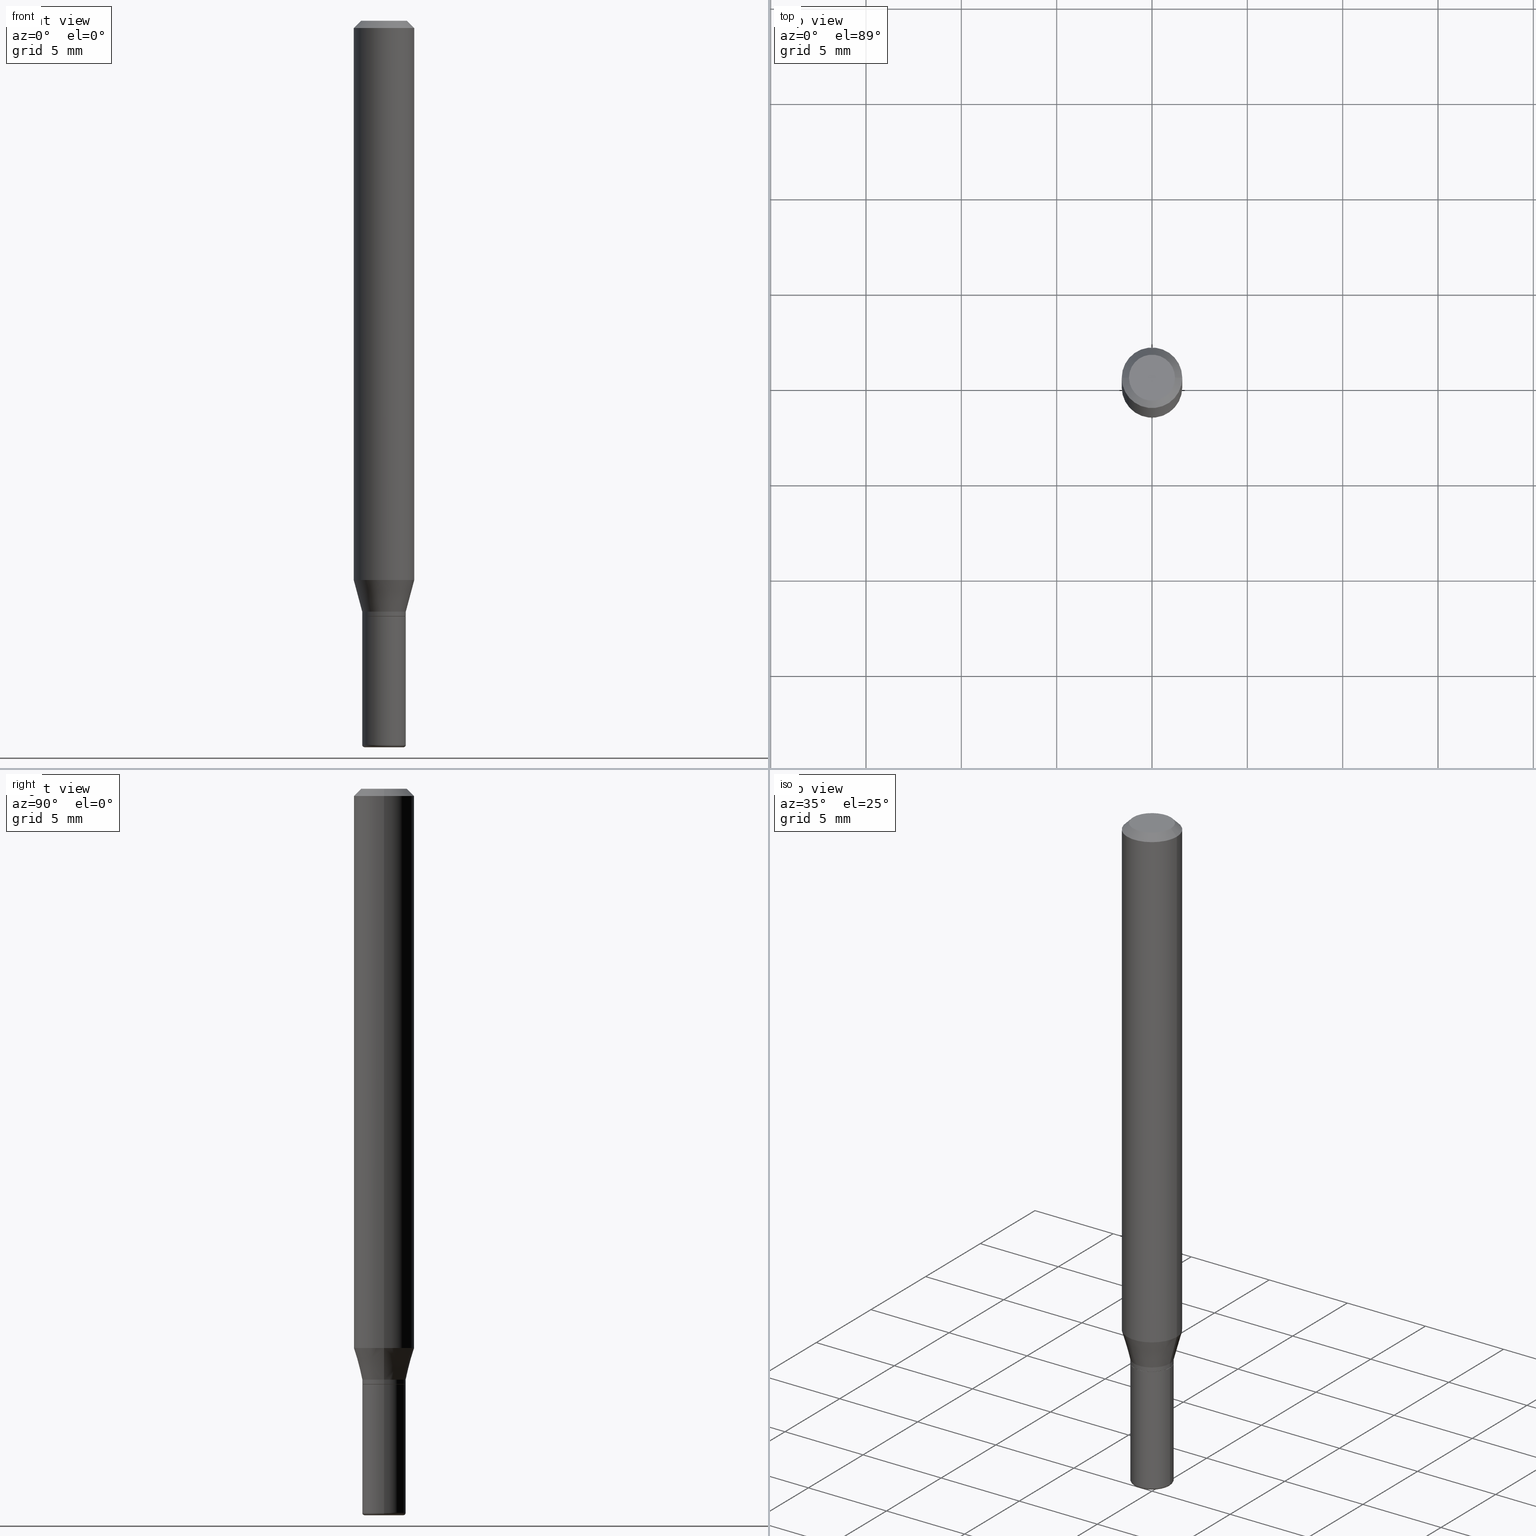
[diagram: canonical four-view strip — front | top / right | iso, engineering-drawing reading convention]
A machine part, canonical four-view strip (front | top / right | iso — engineering-drawing reading convention). The complete STEP part file that produces these views, byte-faithful:
ISO-10303-21;
HEADER;
FILE_DESCRIPTION (( 'STEP AP203' ),
    '1' );
FILE_NAME ('09201.STEP',
    '2024-02-29T23:19:57',
    ( '' ),
    ( '' ),
    'SwSTEP 2.0',
    'SolidWorks 2023',
    '' );
FILE_SCHEMA (( 'CONFIG_CONTROL_DESIGN' ));
ENDSEC;

DATA;
#1 = TOROIDAL_SURFACE ( 'NONE', #68, 0.04000000000000000083, 0.004999999999999903827 ) ;
#2 = FACE_OUTER_BOUND ( 'NONE', #125, .T. ) ;
#3 = AXIS2_PLACEMENT_3D ( 'NONE', #63, #109, #307 ) ;
#4 = ORIENTED_EDGE ( 'NONE', *, *, #65, .T. ) ;
#5 = PERSON_AND_ORGANIZATION_ROLE ( 'creator' ) ;
#6 = CARTESIAN_POINT ( 'NONE',  ( 2.983471943545866110E-29, -4.259607233388636735E-15, -1.219999999999999751 ) ) ;
#7 = SHAPE_DEFINITION_REPRESENTATION ( #67, #415 ) ;
#8 = DIRECTION ( 'NONE',  ( 0.7071067811866199593, -2.468850131083015945E-15, 0.7071067811864750752 ) ) ;
#9 = DIRECTION ( 'NONE',  ( -2.445468806185136597E-29, 3.491481338843145583E-15, 1.000000000000000000 ) ) ;
#10 = AXIS2_PLACEMENT_3D ( 'NONE', #330, #55, #300 ) ;
#11 = SECURITY_CLASSIFICATION ( '', '', #193 ) ;
#12 = ORIENTED_EDGE ( 'NONE', *, *, #149, .T. ) ;
#13 = APPROVAL_ROLE ( '' ) ;
#14 = CARTESIAN_POINT ( 'NONE',  ( 3.655975865246779683E-29, -5.219764601570503930E-15, -1.495000000000000329 ) ) ;
#15 = ORIENTED_EDGE ( 'NONE', *, *, #277, .F. ) ;
#16 = PRODUCT_DEFINITION ( 'UNKNOWN', '', #391, #376 ) ;
#17 = DIRECTION ( 'NONE',  ( 1.000000000000000000, -6.982962677686273021E-15, 0.000000000000000000 ) ) ;
#18 = ORIENTED_EDGE ( 'NONE', *, *, #237, .F. ) ;
#19 = DIRECTION ( 'NONE',  ( 2.445468806185136597E-29, -3.491481338843145583E-15, -1.000000000000000000 ) ) ;
#20 = ADVANCED_FACE ( 'NONE', ( #394 ), #33, .T. ) ;
#21 = CIRCLE ( 'NONE', #458, 0.04499999999999992895 ) ;
#22 = ORIENTED_EDGE ( 'NONE', *, *, #393, .T. ) ;
#23 = TOROIDAL_SURFACE ( 'NONE', #182, 0.04000000000000000083, 0.004999999999999903827 ) ;
#24 = AXIS2_PLACEMENT_3D ( 'NONE', #31, #465, #225 ) ;
#25 = DIRECTION ( 'NONE',  ( -1.000000000000000000, 6.982962677686265922E-15, -4.876176775795935793E-29 ) ) ;
#26 = LINE ( 'NONE', #470, #53 ) ;
#27 = DIRECTION ( 'NONE',  ( -2.438088387897960049E-29, 3.491481338843145188E-15, 1.000000000000000000 ) ) ;
#28 = VECTOR ( 'NONE', #320, 39.37007874015748854 ) ;
#29 = DIRECTION ( 'NONE',  ( 1.000000000000000000, -6.982962677686266711E-15, 0.000000000000000000 ) ) ;
#30 = ORIENTED_EDGE ( 'NONE', *, *, #360, .T. ) ;
#31 = CARTESIAN_POINT ( 'NONE',  ( 3.007926631607718216E-29, -4.294522046777069173E-15, -1.230000000000000204 ) ) ;
#32 = EDGE_CURVE ( 'NONE', #437, #379, #420, .T. ) ;
#33 = CYLINDRICAL_SURFACE ( 'NONE', #244, 0.04499999999999993588 ) ;
#34 = DIRECTION ( 'NONE',  ( -2.445468806185136597E-29, 3.491481338843145583E-15, 1.000000000000000000 ) ) ;
#35 = ORIENTED_EDGE ( 'NONE', *, *, #87, .F. ) ;
#36 = AXIS2_PLACEMENT_3D ( 'NONE', #58, #131, #455 ) ;
#37 = PERSON_AND_ORGANIZATION_ROLE ( 'classification_officer' ) ;
#38 = APPROVAL_PERSON_ORGANIZATION ( #446, #54, #238 ) ;
#39 = DIRECTION ( 'NONE',  ( -2.445468806185136877E-29, 3.491481338843145188E-15, 1.000000000000000000 ) ) ;
#40 = DATE_AND_TIME ( #400, #459 ) ;
#41 = DIRECTION ( 'NONE',  ( -2.445468806185136597E-29, 3.491481338843145583E-15, 1.000000000000000000 ) ) ;
#42 = DATE_AND_TIME ( #189, #104 ) ;
#43 = DIRECTION ( 'NONE',  ( 1.000000000000000000, -6.982962677686269077E-15, 0.000000000000000000 ) ) ;
#44 = DIRECTION ( 'NONE',  ( -2.445468806185136597E-29, 3.491481338843145583E-15, 1.000000000000000000 ) ) ;
#45 = VECTOR ( 'NONE', #134, 39.37007874015748143 ) ;
#46 = ORIENTED_EDGE ( 'NONE', *, *, #485, .F. ) ;
#47 = DIRECTION ( 'NONE',  ( 1.000000000000000000, -6.982962677686265922E-15, 0.000000000000000000 ) ) ;
#48 = CC_DESIGN_PERSON_AND_ORGANIZATION_ASSIGNMENT ( #443, #5, ( #16 ) ) ;
#49 = CARTESIAN_POINT ( 'NONE',  ( 2.983471943545866110E-29, -4.259607233388636735E-15, -1.219999999999999751 ) ) ;
#50 = EDGE_LOOP ( 'NONE', ( #177, #395, #35, #284 ) ) ;
#51 = APPROVAL_DATE_TIME ( #136, #162 ) ;
#52 = CARTESIAN_POINT ( 'NONE',  ( 0.000000000000000000, 0.000000000000000000, 0.000000000000000000 ) ) ;
#53 = VECTOR ( 'NONE', #344, 39.37007874015748143 ) ;
#54 = APPROVAL ( #409, 'UNSPECIFIED' ) ;
#55 = DIRECTION ( 'NONE',  ( -2.445468806185136597E-29, 3.491481338843145583E-15, 1.000000000000000000 ) ) ;
#56 = VERTEX_POINT ( 'NONE', #480 ) ;
#57 = ADVANCED_FACE ( 'NONE', ( #2 ), #23, .T. ) ;
#58 = CARTESIAN_POINT ( 'NONE',  ( -6.680649051745406845E-45, 9.538196290434862081E-31, 2.731847993664263218E-16 ) ) ;
#59 = VERTEX_POINT ( 'NONE', #239 ) ;
#60 = CARTESIAN_POINT ( 'NONE',  ( 3.668203209277632395E-31, -5.237222008264614861E-17, -0.01499999999999970281 ) ) ;
#61 = CIRCLE ( 'NONE', #305, 0.04499999999999992895 ) ;
#62 = ORIENTED_EDGE ( 'NONE', *, *, #153, .F. ) ;
#63 = CARTESIAN_POINT ( 'NONE',  ( 3.668203209277704335E-29, -5.237222008264717388E-15, -1.499999999999999778 ) ) ;
#64 = FACE_OUTER_BOUND ( 'NONE', #313, .T. ) ;
#65 = EDGE_CURVE ( 'NONE', #260, #232, #487, .T. ) ;
#66 = CYLINDRICAL_SURFACE ( 'NONE', #279, 0.04499999999999994976 ) ;
#67 = PRODUCT_DEFINITION_SHAPE ( 'NONE', 'NONE',  #16 ) ;
#68 = AXIS2_PLACEMENT_3D ( 'NONE', #447, #241, #117 ) ;
#69 = EDGE_CURVE ( 'NONE', #379, #206, #390, .T. ) ;
#70 = LINE ( 'NONE', #185, #306 ) ;
#71 = EDGE_LOOP ( 'NONE', ( #170, #190, #100, #449 ) ) ;
#72 = DIRECTION ( 'NONE',  ( 2.438088387897960049E-29, -3.491481338843145188E-15, -1.000000000000000000 ) ) ;
#73 = EDGE_CURVE ( 'NONE', #172, #255, #199, .T. ) ;
#74 = ORIENTED_EDGE ( 'NONE', *, *, #69, .F. ) ;
#75 = CALENDAR_DATE ( 2024, 29, 2 ) ;
#76 = LINE ( 'NONE', #398, #372 ) ;
#77 = DATE_AND_TIME ( #115, #467 ) ;
#78 = AXIS2_PLACEMENT_3D ( 'NONE', #231, #102, #265 ) ;
#79 = DIRECTION ( 'NONE',  ( -2.445468806185136597E-29, 3.491481338843145583E-15, 1.000000000000000000 ) ) ;
#80 =( NAMED_UNIT ( * ) PLANE_ANGLE_UNIT ( ) SI_UNIT ( $, .RADIAN. ) );
#81 = DIRECTION ( 'NONE',  ( -2.445468806185136597E-29, 3.491481338843145583E-15, 1.000000000000000000 ) ) ;
#82 = VERTEX_POINT ( 'NONE', #192 ) ;
#83 = EDGE_CURVE ( 'NONE', #186, #56, #243, .T. ) ;
#84 = PERSON_AND_ORGANIZATION ( #407, #383 ) ;
#85 = CARTESIAN_POINT ( 'NONE',  ( 3.007926631607718216E-29, -4.294522046777069173E-15, -1.230000000000000204 ) ) ;
#86 = ORIENTED_EDGE ( 'NONE', *, *, #106, .T. ) ;
#87 = EDGE_CURVE ( 'NONE', #260, #135, #61, .T. ) ;
#88 = MECHANICAL_CONTEXT ( 'NONE', #184, 'mechanical' ) ;
#89 = AXIS2_PLACEMENT_3D ( 'NONE', #221, #348, #469 ) ;
#90 = CARTESIAN_POINT ( 'NONE',  ( 3.007926631607718216E-29, -4.294522046777069173E-15, -1.230000000000000204 ) ) ;
#91 = VECTOR ( 'NONE', #107, 39.37007874015748143 ) ;
#92 = DIRECTION ( 'NONE',  ( -2.445468806185136597E-29, 3.491481338843145583E-15, 1.000000000000000000 ) ) ;
#93 = DIRECTION ( 'NONE',  ( -1.000000000000000000, 6.982962677686266711E-15, 0.000000000000000000 ) ) ;
#94 = DIRECTION ( 'NONE',  ( -6.982962677686266711E-15, -1.000000000000000000, 3.491481338843145583E-15 ) ) ;
#95 = ORIENTED_EDGE ( 'NONE', *, *, #73, .T. ) ;
#96 = CARTESIAN_POINT ( 'NONE',  ( -0.04449999999999994238, -3.978330529363825493E-15, -1.230000000000000204 ) ) ;
#97 = EDGE_LOOP ( 'NONE', ( #114, #301, #423, #220 ) ) ;
#98 = ADVANCED_FACE ( 'NONE', ( #319 ), #1, .T. ) ;
#99 = PLANE ( 'NONE',  #176 ) ;
#100 = ORIENTED_EDGE ( 'NONE', *, *, #153, .T. ) ;
#101 = PRODUCT ( '09201', '09201', '', ( #88 ) ) ;
#102 = DIRECTION ( 'NONE',  ( -2.445468806185136597E-29, 3.491481338843145583E-15, 1.000000000000000000 ) ) ;
#103 = VECTOR ( 'NONE', #8, 39.37007874015748143 ) ;
#104 = LOCAL_TIME ( 18, 19, 57.00000000000000000, #235 ) ;
#105 = CARTESIAN_POINT ( 'NONE',  ( 0.06250000000000000000, -4.811533449433669144E-16, -0.01499999999999970281 ) ) ;
#106 = EDGE_CURVE ( 'NONE', #59, #437, #217, .T. ) ;
#107 = DIRECTION ( 'NONE',  ( -2.445468806185136877E-29, 3.491481338843145188E-15, 1.000000000000000000 ) ) ;
#108 = CC_DESIGN_DATE_AND_TIME_ASSIGNMENT ( #40, #358, ( #11 ) ) ;
#109 = DIRECTION ( 'NONE',  ( -2.445468806185136597E-29, 3.491481338843145583E-15, 1.000000000000000000 ) ) ;
#110 = ORIENTED_EDGE ( 'NONE', *, *, #219, .T. ) ;
#111 = CONICAL_SURFACE ( 'NONE', #512, 0.04449999999999994238, 0.7853981633975507526 ) ;
#112 = VECTOR ( 'NONE', #431, 39.37007874015748854 ) ;
#113 = FACE_OUTER_BOUND ( 'NONE', #97, .T. ) ;
#114 = ORIENTED_EDGE ( 'NONE', *, *, #128, .F. ) ;
#115 = CALENDAR_DATE ( 2024, 29, 2 ) ;
#116 = CARTESIAN_POINT ( 'NONE',  ( 3.655975865246779122E-29, -5.219764601570503141E-15, -1.495000000000000107 ) ) ;
#117 = DIRECTION ( 'NONE',  ( 1.000000000000000000, -6.982962677686261189E-15, 4.883557194083110098E-29 ) ) ;
#118 = PERSON_AND_ORGANIZATION_ROLE ( 'design_owner' ) ;
#119 = AXIS2_PLACEMENT_3D ( 'NONE', #142, #303, #261 ) ;
#120 = DIRECTION ( 'NONE',  ( 1.000000000000000000, -6.982962677686267499E-15, 4.876176775795935232E-29 ) ) ;
#121 = EDGE_CURVE ( 'NONE', #135, #260, #21, .T. ) ;
#122 = CARTESIAN_POINT ( 'NONE',  ( 2.823756201468229950E-29, -4.031575482759414101E-15, -1.154689110867544111 ) ) ;
#123 = LINE ( 'NONE', #479, #103 ) ;
#124 = ADVANCED_FACE ( 'NONE', ( #450 ), #312, .T. ) ;
#125 = EDGE_LOOP ( 'NONE', ( #86, #230, #212, #15 ) ) ;
#126 = LENGTH_MEASURE_WITH_UNIT ( LENGTH_MEASURE( 0.02539999999999999897 ), #159 );
#127 = CARTESIAN_POINT ( 'NONE',  ( 3.668203209277704335E-29, -5.237222008264717388E-15, -1.499999999999999778 ) ) ;
#128 = EDGE_CURVE ( 'NONE', #82, #135, #477, .T. ) ;
#129 = CIRCLE ( 'NONE', #489, 0.04499999999999999833 ) ;
#130 = AXIS2_PLACEMENT_3D ( 'NONE', #60, #488, #370 ) ;
#131 = DIRECTION ( 'NONE',  ( -2.445468806185136597E-29, 3.491481338843145583E-15, 1.000000000000000000 ) ) ;
#132 = CARTESIAN_POINT ( 'NONE',  ( 3.007926631607718216E-29, -4.294522046777069173E-15, -1.230000000000000204 ) ) ;
#133 = ORIENTED_EDGE ( 'NONE', *, *, #381, .F. ) ;
#134 = DIRECTION ( 'NONE',  ( -2.445468806185136877E-29, 3.491481338843145188E-15, 1.000000000000000000 ) ) ;
#135 = VERTEX_POINT ( 'NONE', #245 ) ;
#136 = DATE_AND_TIME ( #495, #399 ) ;
#137 = CARTESIAN_POINT ( 'NONE',  ( -0.04499999999999994976, 3.197442310920447267E-16, -2.213520790614704757E-30 ) ) ;
#138 = AXIS2_PLACEMENT_3D ( 'NONE', #223, #27, #434 ) ;
#139 = ORIENTED_EDGE ( 'NONE', *, *, #472, .F. ) ;
#140 = FACE_OUTER_BOUND ( 'NONE', #141, .T. ) ;
#141 = EDGE_LOOP ( 'NONE', ( #240, #501, #464, #412 ) ) ;
#142 = CARTESIAN_POINT ( 'NONE',  ( 3.006703897204625975E-29, -4.292776306107648458E-15, -1.229500000000000259 ) ) ;
#143 = CARTESIAN_POINT ( 'NONE',  ( -0.04499999999999990119, -4.437399093081741973E-15, -1.495000000000000329 ) ) ;
#144 = AXIS2_PLACEMENT_3D ( 'NONE', #468, #503, #29 ) ;
#145 = DIRECTION ( 'NONE',  ( 0.7071067811865479058, -7.319954787623257623E-15, -0.7071067811865471286 ) ) ;
#146 = ADVANCED_FACE ( 'NONE', ( #161 ), #111, .T. ) ;
#147 = PLANE ( 'NONE',  #218 ) ;
#148 = ORIENTED_EDGE ( 'NONE', *, *, #456, .F. ) ;
#149 = EDGE_CURVE ( 'NONE', #354, #298, #123, .T. ) ;
#150 = CARTESIAN_POINT ( 'NONE',  ( 2.983471943545866110E-29, -4.259607233388636735E-15, -1.219999999999999751 ) ) ;
#151 = ORIENTED_EDGE ( 'NONE', *, *, #87, .T. ) ;
#152 = CIRCLE ( 'NONE', #10, 0.06250000000000000000 ) ;
#153 = EDGE_CURVE ( 'NONE', #385, #56, #318, .T. ) ;
#154 = AXIS2_PLACEMENT_3D ( 'NONE', #439, #430, #229 ) ;
#155 = EDGE_LOOP ( 'NONE', ( #151, #309, #367, #440 ) ) ;
#156 = PERSON_AND_ORGANIZATION ( #407, #383 ) ;
#157 = CARTESIAN_POINT ( 'NONE',  ( 0.04499999999999990119, -5.533997922066385616E-15, -1.495000000000000329 ) ) ;
#158 = AXIS2_PLACEMENT_3D ( 'NONE', #448, #365, #204 ) ;
#159 =( LENGTH_UNIT ( ) NAMED_UNIT ( * ) SI_UNIT ( $, .METRE. ) );
#160 = AXIS2_PLACEMENT_3D ( 'NONE', #317, #282, #352 ) ;
#161 = FACE_OUTER_BOUND ( 'NONE', #165, .T. ) ;
#162 = APPROVAL ( #299, 'UNSPECIFIED' ) ;
#163 = COORDINATED_UNIVERSAL_TIME_OFFSET ( 5, 0, .BEHIND. ) ;
#164 = DIRECTION ( 'NONE',  ( 1.000000000000000000, -6.982962677686257244E-15, 0.000000000000000000 ) ) ;
#165 = EDGE_LOOP ( 'NONE', ( #371, #246, #188, #349 ) ) ;
#166 = DIRECTION ( 'NONE',  ( -2.445468806185136597E-29, 3.491481338843145583E-15, 1.000000000000000000 ) ) ;
#167 = CIRCLE ( 'NONE', #490, 0.004999999999999903827 ) ;
#168 = CIRCLE ( 'NONE', #89, 0.04449999999999994238 ) ;
#169 = DIRECTION ( 'NONE',  ( 1.000000000000000000, -6.982962677686261977E-15, 0.000000000000000000 ) ) ;
#170 = ORIENTED_EDGE ( 'NONE', *, *, #481, .F. ) ;
#171 = LINE ( 'NONE', #493, #45 ) ;
#172 = VERTEX_POINT ( 'NONE', #442 ) ;
#173 = CARTESIAN_POINT ( 'NONE',  ( 0.04449999999999994238, -4.605263885934107852E-15, -1.230000000000000204 ) ) ;
#174 = EDGE_LOOP ( 'NONE', ( #133, #110, #326, #417 ) ) ;
#175 = CARTESIAN_POINT ( 'NONE',  ( 3.006703897204625975E-29, -4.292776306107648458E-15, -1.229500000000000259 ) ) ;
#176 = AXIS2_PLACEMENT_3D ( 'NONE', #418, #375, #289 ) ;
#177 = ORIENTED_EDGE ( 'NONE', *, *, #222, .T. ) ;
#178 = DIRECTION ( 'NONE',  ( 1.000000000000000000, -6.982962677686266711E-15, 4.876176775795934672E-29 ) ) ;
#179 = DIRECTION ( 'NONE',  ( -2.445468806185136877E-29, 3.491481338843145188E-15, 1.000000000000000000 ) ) ;
#180 = EDGE_CURVE ( 'NONE', #232, #186, #76, .T. ) ;
#181 = DIRECTION ( 'NONE',  ( 1.000000000000000000, -6.982962677686257244E-15, 0.000000000000000000 ) ) ;
#182 = AXIS2_PLACEMENT_3D ( 'NONE', #116, #404, #202 ) ;
#183 = LOCAL_TIME ( 18, 19, 57.00000000000000000, #274 ) ;
#184 = APPLICATION_CONTEXT ( 'configuration controlled 3d designs of mechanical parts and assemblies' ) ;
#185 = CARTESIAN_POINT ( 'NONE',  ( -0.06250000000000000000, 4.440892098500626162E-16, -3.074334431409316114E-30 ) ) ;
#186 = VERTEX_POINT ( 'NONE', #357 ) ;
#187 = FACE_OUTER_BOUND ( 'NONE', #294, .T. ) ;
#188 = ORIENTED_EDGE ( 'NONE', *, *, #222, .F. ) ;
#189 = CALENDAR_DATE ( 2024, 29, 2 ) ;
#190 = ORIENTED_EDGE ( 'NONE', *, *, #250, .F. ) ;
#191 = COORDINATED_UNIVERSAL_TIME_OFFSET ( 5, 0, .BEHIND. ) ;
#192 = CARTESIAN_POINT ( 'NONE',  ( -0.04499999999999994976, -3.973032075015603880E-15, -1.229500000000000259 ) ) ;
#193 = SECURITY_CLASSIFICATION_LEVEL ( 'unclassified' ) ;
#194 = DIRECTION ( 'NONE',  ( 1.000000000000000000, -6.982962677686257244E-15, 0.000000000000000000 ) ) ;
#195 = CC_DESIGN_PERSON_AND_ORGANIZATION_ASSIGNMENT ( #441, #397, ( #391 ) ) ;
#196 = DIRECTION ( 'NONE',  ( 1.000000000000000000, -6.982962677686262766E-15, 0.000000000000000000 ) ) ;
#197 = DIRECTION ( 'NONE',  ( -2.445468806185136597E-29, 3.491481338843145583E-15, 1.000000000000000000 ) ) ;
#198 = VERTEX_POINT ( 'NONE', #401 ) ;
#199 = CIRCLE ( 'NONE', #234, 0.04499999999999999833 ) ;
#200 = DATE_AND_TIME ( #75, #183 ) ;
#201 = AXIS2_PLACEMENT_3D ( 'NONE', #392, #350, #308 ) ;
#202 = DIRECTION ( 'NONE',  ( 1.000000000000000000, -6.982962677686261189E-15, 4.883557194083110098E-29 ) ) ;
#203 = ORIENTED_EDGE ( 'NONE', *, *, #481, .T. ) ;
#204 = DIRECTION ( 'NONE',  ( 1.000000000000000000, -6.982962677686261977E-15, 0.000000000000000000 ) ) ;
#205 = CYLINDRICAL_SURFACE ( 'NONE', #428, 0.06250000000000000000 ) ;
#206 = VERTEX_POINT ( 'NONE', #157 ) ;
#207 = CONICAL_SURFACE ( 'NONE', #505, 0.06250000000000000000, 0.7853981633974488341 ) ;
#208 = CC_DESIGN_SECURITY_CLASSIFICATION ( #11, ( #391 ) ) ;
#209 = CARTESIAN_POINT ( 'NONE',  ( 0.04499999999999992895, -4.573840553884517633E-15, -1.219999999999999751 ) ) ;
#210 = ORIENTED_EDGE ( 'NONE', *, *, #393, .F. ) ;
#211 = DIRECTION ( 'NONE',  ( 1.000000000000000000, -6.982962677686257244E-15, 0.000000000000000000 ) ) ;
#212 = ORIENTED_EDGE ( 'NONE', *, *, #337, .F. ) ;
#213 = ADVANCED_FACE ( 'NONE', ( #254 ), #207, .T. ) ;
#214 = DIRECTION ( 'NONE',  ( -2.445468806185136597E-29, 3.491481338843145583E-15, 1.000000000000000000 ) ) ;
#215 = ORIENTED_EDGE ( 'NONE', *, *, #494, .F. ) ;
#216 = DIRECTION ( 'NONE',  ( -2.445468806185136597E-29, 3.491481338843145583E-15, 1.000000000000000000 ) ) ;
#217 = CIRCLE ( 'NONE', #226, 0.04000000000000000083 ) ;
#218 = AXIS2_PLACEMENT_3D ( 'NONE', #343, #72, #25 ) ;
#219 = EDGE_CURVE ( 'NONE', #497, #232, #152, .T. ) ;
#220 = ORIENTED_EDGE ( 'NONE', *, *, #121, .F. ) ;
#221 = CARTESIAN_POINT ( 'NONE',  ( 3.007926631607718216E-29, -4.294522046777069173E-15, -1.230000000000000204 ) ) ;
#222 = EDGE_CURVE ( 'NONE', #298, #82, #451, .T. ) ;
#223 = CARTESIAN_POINT ( 'NONE',  ( 3.582686580359765478E-29, -5.359686688179452536E-15, -1.499999999999999778 ) ) ;
#224 = MANIFOLD_SOLID_BREP ( 'Body-Move/Copy2[1]', #278 ) ;
#225 = DIRECTION ( 'NONE',  ( 1.000000000000000000, -6.982962677686265922E-15, 4.876176775795935793E-29 ) ) ;
#226 = AXIS2_PLACEMENT_3D ( 'NONE', #127, #197, #236 ) ;
#227 = CIRCLE ( 'NONE', #3, 0.04000000000000000083 ) ;
#228 = ADVANCED_FACE ( 'NONE', ( #491 ), #205, .T. ) ;
#229 = DIRECTION ( 'NONE',  ( 1.000000000000000000, -6.982962677686266711E-15, 4.852736867747365086E-29 ) ) ;
#230 = ORIENTED_EDGE ( 'NONE', *, *, #32, .T. ) ;
#231 = CARTESIAN_POINT ( 'NONE',  ( 3.007926631607718216E-29, -4.294522046777069173E-15, -1.230000000000000204 ) ) ;
#232 = VERTEX_POINT ( 'NONE', #297 ) ;
#233 = CARTESIAN_POINT ( 'NONE',  ( 3.668203209277632395E-31, -5.237222008264614861E-17, -0.01499999999999970281 ) ) ;
#234 = AXIS2_PLACEMENT_3D ( 'NONE', #85, #79, #43 ) ;
#235 = COORDINATED_UNIVERSAL_TIME_OFFSET ( 5, 0, .BEHIND. ) ;
#236 = DIRECTION ( 'NONE',  ( 1.000000000000000000, -6.982962677686259611E-15, 0.000000000000000000 ) ) ;
#237 = EDGE_CURVE ( 'NONE', #255, #172, #129, .T. ) ;
#238 = APPROVAL_ROLE ( '' ) ;
#239 = CARTESIAN_POINT ( 'NONE',  ( 0.04000000000000000083, -5.516540515372168214E-15, -1.499999999999999778 ) ) ;
#240 = ORIENTED_EDGE ( 'NONE', *, *, #517, .T. ) ;
#241 = DIRECTION ( 'NONE',  ( -2.445468806185136597E-29, 3.491481338843145583E-15, 1.000000000000000000 ) ) ;
#242 = VERTEX_POINT ( 'NONE', #249 ) ;
#243 = CIRCLE ( 'NONE', #498, 0.06250000000000000000 ) ;
#244 = AXIS2_PLACEMENT_3D ( 'NONE', #511, #44, #120 ) ;
#245 = CARTESIAN_POINT ( 'NONE',  ( -0.04499999999999992895, -3.763674637602971820E-15, -1.219999999999999751 ) ) ;
#246 = ORIENTED_EDGE ( 'NONE', *, *, #256, .T. ) ;
#247 = CARTESIAN_POINT ( 'NONE',  ( 0.000000000000000000, 0.000000000000000000, 0.000000000000000000 ) ) ;
#248 = EDGE_LOOP ( 'NONE', ( #514, #406, #12, #139 ) ) ;
#249 = CARTESIAN_POINT ( 'NONE',  ( 0.04750000000000000749, -4.035134999187568762E-16, 2.731847993664288856E-16 ) ) ;
#250 = EDGE_CURVE ( 'NONE', #385, #242, #262, .T. ) ;
#251 = ORIENTED_EDGE ( 'NONE', *, *, #106, .F. ) ;
#252 = COORDINATED_UNIVERSAL_TIME_OFFSET ( 5, 0, .BEHIND. ) ;
#253 = CIRCLE ( 'NONE', #119, 0.04499999999999994976 ) ;
#254 = FACE_OUTER_BOUND ( 'NONE', #71, .T. ) ;
#255 = VERTEX_POINT ( 'NONE', #291 ) ;
#256 = EDGE_CURVE ( 'NONE', #198, #82, #453, .T. ) ;
#257 = DIRECTION ( 'NONE',  ( 1.000000000000000000, -6.982962677686266711E-15, 4.876176775795935793E-29 ) ) ;
#258 = ORIENTED_EDGE ( 'NONE', *, *, #360, .F. ) ;
#259 = CYLINDRICAL_SURFACE ( 'NONE', #506, 0.04499999999999994976 ) ;
#260 = VERTEX_POINT ( 'NONE', #209 ) ;
#261 = DIRECTION ( 'NONE',  ( 1.000000000000000000, -6.982962677686276177E-15, 0.000000000000000000 ) ) ;
#262 = CIRCLE ( 'NONE', #36, 0.04750000000000000749 ) ;
#263 = ADVANCED_FACE ( 'NONE', ( #140 ), #380, .T. ) ;
#264 = AXIS2_PLACEMENT_3D ( 'NONE', #150, #266, #181 ) ;
#265 = DIRECTION ( 'NONE',  ( 1.000000000000000000, -6.982962677686265922E-15, 0.000000000000000000 ) ) ;
#266 = DIRECTION ( 'NONE',  ( -2.445468806185136597E-29, 3.491481338843145583E-15, 1.000000000000000000 ) ) ;
#267 = CARTESIAN_POINT ( 'NONE',  ( -0.04000000000000000083, -4.926512642219568995E-15, -1.499999999999999778 ) ) ;
#268 = EDGE_LOOP ( 'NONE', ( #273, #369, #4, #334 ) ) ;
#269 = AXIS2_PLACEMENT_3D ( 'NONE', #90, #81, #361 ) ;
#270 = AXIS2_PLACEMENT_3D ( 'NONE', #49, #214, #211 ) ;
#271 = CC_DESIGN_PERSON_AND_ORGANIZATION_ASSIGNMENT ( #513, #476, ( #391 ) ) ;
#272 = CARTESIAN_POINT ( 'NONE',  ( -0.04499999999999992895, -3.939863002296592156E-15, -1.219999999999999751 ) ) ;
#273 = ORIENTED_EDGE ( 'NONE', *, *, #432, .F. ) ;
#274 = COORDINATED_UNIVERSAL_TIME_OFFSET ( 5, 0, .BEHIND. ) ;
#275 = CARTESIAN_POINT ( 'NONE',  ( -0.04499999999999993588, 3.197442310920446281E-16, -2.213520790614704407E-30 ) ) ;
#276 = DIRECTION ( 'NONE',  ( -0.7071067811865479058, 2.468850131082261005E-15, -0.7071067811865471286 ) ) ;
#277 = EDGE_CURVE ( 'NONE', #59, #206, #167, .T. ) ;
#278 = CLOSED_SHELL ( 'NONE', ( #57, #316, #310, #452, #98, #502 ) ) ;
#279 = AXIS2_PLACEMENT_3D ( 'NONE', #346, #389, #178 ) ;
#280 = APPLICATION_PROTOCOL_DEFINITION ( 'international standard', 'config_control_design', 1994, #322 ) ;
#281 = DIRECTION ( 'NONE',  ( -2.445468806185136597E-29, 3.491481338843145583E-15, 1.000000000000000000 ) ) ;
#282 = DIRECTION ( 'NONE',  ( 0.000000000000000000, 0.000000000000000000, 1.000000000000000000 ) ) ;
#283 = CARTESIAN_POINT ( 'NONE',  ( 0.04499999999999992895, -4.573840553884517633E-15, -1.219999999999999751 ) ) ;
#284 = ORIENTED_EDGE ( 'NONE', *, *, #345, .F. ) ;
#285 = APPROVAL_DATE_TIME ( #42, #388 ) ;
#286 = DIRECTION ( 'NONE',  ( -2.445468806185136597E-29, 3.491481338843145583E-15, 1.000000000000000000 ) ) ;
#287 = EDGE_LOOP ( 'NONE', ( #377, #30, #331, #148 ) ) ;
#288 = CIRCLE ( 'NONE', #78, 0.04449999999999994238 ) ;
#289 = DIRECTION ( 'NONE',  ( -1.000000000000000000, 6.982962677686265922E-15, -4.876176775795935793E-29 ) ) ;
#290 = DIRECTION ( 'NONE',  ( -2.445468806185136597E-29, 3.491481338843145583E-15, 1.000000000000000000 ) ) ;
#291 = CARTESIAN_POINT ( 'NONE',  ( -0.04499999999999999833, -4.437399093081741973E-15, -1.230000000000000204 ) ) ;
#292 = UNCERTAINTY_MEASURE_WITH_UNIT (LENGTH_MEASURE( 1.000000000000000082E-05 ), #356, 'distance_accuracy_value', 'NONE');
#293 = CC_DESIGN_PERSON_AND_ORGANIZATION_ASSIGNMENT ( #156, #37, ( #11 ) ) ;
#294 = EDGE_LOOP ( 'NONE', ( #215, #457 ) ) ;
#295 = CLOSED_SHELL ( 'NONE', ( #20, #146, #332, #263, #414, #325, #228, #213, #438, #402, #124, #396 ) ) ;
#296 =( GEOMETRIC_REPRESENTATION_CONTEXT ( 3 ) GLOBAL_UNCERTAINTY_ASSIGNED_CONTEXT ( ( #292 ) ) GLOBAL_UNIT_ASSIGNED_CONTEXT ( ( #356, #80, #364 ) ) REPRESENTATION_CONTEXT ( 'NONE', 'WORKASPACE' ) );
#297 = CARTESIAN_POINT ( 'NONE',  ( 0.06250000000000000000, -4.468010650114805770E-15, -1.154689110867544111 ) ) ;
#298 = VERTEX_POINT ( 'NONE', #422 ) ;
#299 = APPROVAL_STATUS ( 'not_yet_approved' ) ;
#300 = DIRECTION ( 'NONE',  ( 1.000000000000000000, -6.982962677686262766E-15, 0.000000000000000000 ) ) ;
#301 = ORIENTED_EDGE ( 'NONE', *, *, #472, .T. ) ;
#302 = PRODUCT_RELATED_PRODUCT_CATEGORY ( 'detail', '', ( #101 ) ) ;
#303 = DIRECTION ( 'NONE',  ( -2.445468806185136597E-29, 3.491481338843145583E-15, 1.000000000000000000 ) ) ;
#304 = FACE_OUTER_BOUND ( 'NONE', #461, .T. ) ;
#305 = AXIS2_PLACEMENT_3D ( 'NONE', #6, #281, #164 ) ;
#306 = VECTOR ( 'NONE', #179, 39.37007874015748143 ) ;
#307 = DIRECTION ( 'NONE',  ( 1.000000000000000000, -6.982962677686259611E-15, 0.000000000000000000 ) ) ;
#308 = DIRECTION ( 'NONE',  ( 1.000000000000000000, -6.982962677686267499E-15, 4.876176775795935232E-29 ) ) ;
#309 = ORIENTED_EDGE ( 'NONE', *, *, #432, .T. ) ;
#310 = ADVANCED_FACE ( 'NONE', ( #463 ), #99, .F. ) ;
#311 = LINE ( 'NONE', #272, #112 ) ;
#312 = CONICAL_SURFACE ( 'NONE', #269, 0.04449999999999994238, 0.7853981633975507526 ) ;
#313 = EDGE_LOOP ( 'NONE', ( #251, #46 ) ) ;
#314 = CC_DESIGN_APPROVAL ( #388, ( #391 ) ) ;
#315 = APPROVAL_PERSON_ORGANIZATION ( #374, #162, #13 ) ;
#316 = ADVANCED_FACE ( 'NONE', ( #384 ), #259, .T. ) ;
#317 = CARTESIAN_POINT ( 'NONE',  ( 0.000000000000000000, 0.000000000000000000, 0.000000000000000000 ) ) ;
#318 = LINE ( 'NONE', #518, #339 ) ;
#319 = FACE_OUTER_BOUND ( 'NONE', #363, .T. ) ;
#320 = DIRECTION ( 'NONE',  ( 0.2588190451025205729, 1.565188264969627490E-15, 0.9659258262890682012 ) ) ;
#321 = CC_DESIGN_APPROVAL ( #54, ( #16 ) ) ;
#322 = APPLICATION_CONTEXT ( 'configuration controlled 3d designs of mechanical parts and assemblies' ) ;
#323 = CARTESIAN_POINT ( 'NONE',  ( 2.983471943545866110E-29, -4.259607233388636735E-15, -1.219999999999999751 ) ) ;
#324 = PERSON_AND_ORGANIZATION ( #407, #383 ) ;
#325 = ADVANCED_FACE ( 'NONE', ( #333 ), #436, .T. ) ;
#326 = ORIENTED_EDGE ( 'NONE', *, *, #180, .T. ) ;
#327 = CARTESIAN_POINT ( 'NONE',  ( 0.000000000000000000, 0.000000000000000000, 0.000000000000000000 ) ) ;
#328 = VECTOR ( 'NONE', #454, 39.37007874015748143 ) ;
#329 = CONICAL_SURFACE ( 'NONE', #130, 0.06250000000000000000, 0.7853981633974488341 ) ;
#330 = CARTESIAN_POINT ( 'NONE',  ( 2.823756201468229950E-29, -4.031575482759414101E-15, -1.154689110867544111 ) ) ;
#331 = ORIENTED_EDGE ( 'NONE', *, *, #73, .F. ) ;
#332 = ADVANCED_FACE ( 'NONE', ( #426 ), #329, .T. ) ;
#333 = FACE_OUTER_BOUND ( 'NONE', #268, .T. ) ;
#334 = ORIENTED_EDGE ( 'NONE', *, *, #219, .F. ) ;
#335 = DIMENSIONAL_EXPONENTS ( 1.000000000000000000, 0.000000000000000000, 0.000000000000000000, 0.000000000000000000, 0.000000000000000000, 0.000000000000000000, 0.000000000000000000 ) ;
#336 = LINE ( 'NONE', #137, #91 ) ;
#337 = EDGE_CURVE ( 'NONE', #206, #379, #429, .T. ) ;
#338 = ORIENTED_EDGE ( 'NONE', *, *, #83, .T. ) ;
#339 = VECTOR ( 'NONE', #276, 39.37007874015748143 ) ;
#340 = CIRCLE ( 'NONE', #154, 0.04750000000000000749 ) ;
#341 = DIRECTION ( 'NONE',  ( 1.000000000000000000, -6.982962677686269077E-15, 0.000000000000000000 ) ) ;
#342 = EDGE_LOOP ( 'NONE', ( #95, #475 ) ) ;
#343 = CARTESIAN_POINT ( 'NONE',  ( 3.316907271900976589E-16, 0.04750000000000000749, -2.925296391183627249E-17 ) ) ;
#344 = DIRECTION ( 'NONE',  ( -2.445468806185136877E-29, 3.491481338843145188E-15, 1.000000000000000000 ) ) ;
#345 = EDGE_CURVE ( 'NONE', #298, #260, #171, .T. ) ;
#346 = CARTESIAN_POINT ( 'NONE',  ( 0.000000000000000000, 0.000000000000000000, 0.000000000000000000 ) ) ;
#347 = CONICAL_SURFACE ( 'NONE', #264, 0.04499999999999992895, 0.2617993877991492968 ) ;
#348 = DIRECTION ( 'NONE',  ( -2.445468806185136597E-29, 3.491481338843145583E-15, 1.000000000000000000 ) ) ;
#349 = ORIENTED_EDGE ( 'NONE', *, *, #149, .F. ) ;
#350 = DIRECTION ( 'NONE',  ( -2.445468806185136597E-29, 3.491481338843145583E-15, 1.000000000000000000 ) ) ;
#351 = EDGE_LOOP ( 'NONE', ( #492, #22 ) ) ;
#352 = DIRECTION ( 'NONE',  ( 1.000000000000000000, 0.000000000000000000, 0.000000000000000000 ) ) ;
#353 = AXIS2_PLACEMENT_3D ( 'NONE', #175, #92, #378 ) ;
#354 = VERTEX_POINT ( 'NONE', #173 ) ;
#355 = CC_DESIGN_PERSON_AND_ORGANIZATION_ASSIGNMENT ( #84, #118, ( #101 ) ) ;
#356 =( CONVERSION_BASED_UNIT ( 'INCH', #126 ) LENGTH_UNIT ( ) NAMED_UNIT ( #335 ) );
#357 = CARTESIAN_POINT ( 'NONE',  ( 0.06250000000000000000, -4.888073874380378612E-16, -0.01499999999999970281 ) ) ;
#358 = DATE_TIME_ROLE ( 'classification_date' ) ;
#359 = DIRECTION ( 'NONE',  ( -1.000000000000000000, 7.105427357601061812E-15, 0.000000000000000000 ) ) ;
#360 = EDGE_CURVE ( 'NONE', #379, #255, #336, .T. ) ;
#361 = DIRECTION ( 'NONE',  ( 1.000000000000000000, -6.982962677686265922E-15, 0.000000000000000000 ) ) ;
#362 = VECTOR ( 'NONE', #410, 39.37007874015748143 ) ;
#363 = EDGE_LOOP ( 'NONE', ( #382, #427, #419, #74 ) ) ;
#364 =( NAMED_UNIT ( * ) SI_UNIT ( $, .STERADIAN. ) SOLID_ANGLE_UNIT ( ) );
#365 = DIRECTION ( 'NONE',  ( -2.445468806185136597E-29, 3.491481338843145583E-15, 1.000000000000000000 ) ) ;
#366 = CC_DESIGN_DATE_AND_TIME_ASSIGNMENT ( #77, #478, ( #16 ) ) ;
#367 = ORIENTED_EDGE ( 'NONE', *, *, #517, .F. ) ;
#368 = DIRECTION ( 'NONE',  ( -2.445468806185136597E-29, 3.491481338843145583E-15, 1.000000000000000000 ) ) ;
#369 = ORIENTED_EDGE ( 'NONE', *, *, #121, .T. ) ;
#370 = DIRECTION ( 'NONE',  ( -1.000000000000000000, 6.982962677686266711E-15, 0.000000000000000000 ) ) ;
#371 = ORIENTED_EDGE ( 'NONE', *, *, #494, .T. ) ;
#372 = VECTOR ( 'NONE', #39, 39.37007874015748143 ) ;
#373 = CC_DESIGN_APPROVAL ( #162, ( #11 ) ) ;
#374 = PERSON_AND_ORGANIZATION ( #407, #383 ) ;
#375 = DIRECTION ( 'NONE',  ( 2.438088387897960049E-29, -3.491481338843145188E-15, -1.000000000000000000 ) ) ;
#376 = DESIGN_CONTEXT ( 'detailed design', #322, 'design' ) ;
#377 = ORIENTED_EDGE ( 'NONE', *, *, #337, .T. ) ;
#378 = DIRECTION ( 'NONE',  ( 1.000000000000000000, -6.982962677686276177E-15, 0.000000000000000000 ) ) ;
#379 = VERTEX_POINT ( 'NONE', #143 ) ;
#380 = CYLINDRICAL_SURFACE ( 'NONE', #466, 0.06250000000000000000 ) ;
#381 = EDGE_CURVE ( 'NONE', #497, #56, #70, .T. ) ;
#382 = ORIENTED_EDGE ( 'NONE', *, *, #32, .F. ) ;
#383 = ORGANIZATION ( 'UNSPECIFIED', 'UNSPECIFIED', '' ) ;
#384 = FACE_OUTER_BOUND ( 'NONE', #287, .T. ) ;
#385 = VERTEX_POINT ( 'NONE', #473 ) ;
#386 = CARTESIAN_POINT ( 'NONE',  ( -0.06250000000000000000, -3.587486272909351485E-15, -1.154689110867544111 ) ) ;
#387 = CYLINDRICAL_SURFACE ( 'NONE', #201, 0.04499999999999993588 ) ;
#388 = APPROVAL ( #486, 'UNSPECIFIED' ) ;
#389 = DIRECTION ( 'NONE',  ( -2.445468806185136597E-29, 3.491481338843145583E-15, 1.000000000000000000 ) ) ;
#390 = CIRCLE ( 'NONE', #158, 0.04499999999999990119 ) ;
#391 = PRODUCT_DEFINITION_FORMATION_WITH_SPECIFIED_SOURCE ( 'ANY', '', #101, .NOT_KNOWN. ) ;
#392 = CARTESIAN_POINT ( 'NONE',  ( 0.000000000000000000, 0.000000000000000000, 0.000000000000000000 ) ) ;
#393 = EDGE_CURVE ( 'NONE', #242, #385, #340, .T. ) ;
#394 = FACE_OUTER_BOUND ( 'NONE', #50, .T. ) ;
#395 = ORIENTED_EDGE ( 'NONE', *, *, #128, .T. ) ;
#396 = ADVANCED_FACE ( 'NONE', ( #113 ), #387, .T. ) ;
#397 = PERSON_AND_ORGANIZATION_ROLE ( 'design_supplier' ) ;
#398 = CARTESIAN_POINT ( 'NONE',  ( 0.06250000000000000000, -4.364351673553916694E-16, 3.047610484872459871E-30 ) ) ;
#399 = LOCAL_TIME ( 18, 19, 57.00000000000000000, #252 ) ;
#400 = CALENDAR_DATE ( 2024, 29, 2 ) ;
#401 = CARTESIAN_POINT ( 'NONE',  ( -0.04449999999999994238, -3.975681302189714292E-15, -1.230000000000000204 ) ) ;
#402 = ADVANCED_FACE ( 'NONE', ( #187 ), #508, .F. ) ;
#403 = APPROVAL_ROLE ( '' ) ;
#404 = DIRECTION ( 'NONE',  ( -2.445468806185136597E-29, 3.491481338843145583E-15, 1.000000000000000000 ) ) ;
#405 = MANIFOLD_SOLID_BREP ( 'Body-Move/Copy2[2]', #295 ) ;
#406 = ORIENTED_EDGE ( 'NONE', *, *, #408, .T. ) ;
#407 = PERSON ( 'UNSPECIFIED', 'UNSPECIFIED', 'UNSPECIFIED', ('UNSPECIFIED'), ('UNSPECIFIED'), ('UNSPECIFIED') ) ;
#408 = EDGE_CURVE ( 'NONE', #198, #354, #288, .T. ) ;
#409 = APPROVAL_STATUS ( 'not_yet_approved' ) ;
#410 = DIRECTION ( 'NONE',  ( -2.445468806185136877E-29, 3.491481338843145188E-15, 1.000000000000000000 ) ) ;
#411 = VECTOR ( 'NONE', #145, 39.37007874015748143 ) ;
#412 = ORIENTED_EDGE ( 'NONE', *, *, #180, .F. ) ;
#413 = CARTESIAN_POINT ( 'NONE',  ( 3.007926631607718216E-29, -4.294522046777069173E-15, -1.230000000000000204 ) ) ;
#414 = ADVANCED_FACE ( 'NONE', ( #510 ), #347, .T. ) ;
#415 = ADVANCED_BREP_SHAPE_REPRESENTATION ( '09201', ( #224, #405, #160 ), #296 ) ;
#416 = DIRECTION ( 'NONE',  ( 1.000000000000000000, -6.982962677686266711E-15, 4.876176775795934672E-29 ) ) ;
#417 = ORIENTED_EDGE ( 'NONE', *, *, #462, .F. ) ;
#418 = CARTESIAN_POINT ( 'NONE',  ( 3.142333204959120083E-16, 0.04499999999999570316, -1.230000000000000204 ) ) ;
#419 = ORIENTED_EDGE ( 'NONE', *, *, #277, .T. ) ;
#420 = CIRCLE ( 'NONE', #435, 0.004999999999999903827 ) ;
#421 = CIRCLE ( 'NONE', #474, 0.06250000000000000000 ) ;
#422 = CARTESIAN_POINT ( 'NONE',  ( 0.04499999999999994976, -4.607009626603530145E-15, -1.229500000000000259 ) ) ;
#423 = ORIENTED_EDGE ( 'NONE', *, *, #345, .T. ) ;
#424 = CARTESIAN_POINT ( 'NONE',  ( 0.04000000000000000083, -5.499083108677953967E-15, -1.495000000000000107 ) ) ;
#425 = ORIENTED_EDGE ( 'NONE', *, *, #456, .T. ) ;
#426 = FACE_OUTER_BOUND ( 'NONE', #471, .T. ) ;
#427 = ORIENTED_EDGE ( 'NONE', *, *, #485, .T. ) ;
#428 = AXIS2_PLACEMENT_3D ( 'NONE', #247, #216, #257 ) ;
#429 = CIRCLE ( 'NONE', #499, 0.04499999999999990119 ) ;
#430 = DIRECTION ( 'NONE',  ( -2.445468806185136597E-29, 3.491481338843145583E-15, 1.000000000000000000 ) ) ;
#431 = DIRECTION ( 'NONE',  ( -0.2588190451025205729, 5.211531920934544731E-15, 0.9659258262890682012 ) ) ;
#432 = EDGE_CURVE ( 'NONE', #135, #497, #311, .T. ) ;
#433 = FACE_OUTER_BOUND ( 'NONE', #351, .T. ) ;
#434 = DIRECTION ( 'NONE',  ( 1.000000000000000000, -6.982962677686265922E-15, 4.876176775795935793E-29 ) ) ;
#435 = AXIS2_PLACEMENT_3D ( 'NONE', #444, #484, #359 ) ;
#436 = CONICAL_SURFACE ( 'NONE', #270, 0.04499999999999992895, 0.2617993877991492968 ) ;
#437 = VERTEX_POINT ( 'NONE', #267 ) ;
#438 = ADVANCED_FACE ( 'NONE', ( #433 ), #147, .F. ) ;
#439 = CARTESIAN_POINT ( 'NONE',  ( -6.680649051745406845E-45, 9.538196290434862081E-31, 2.731847993664263218E-16 ) ) ;
#440 = ORIENTED_EDGE ( 'NONE', *, *, #65, .F. ) ;
#441 = PERSON_AND_ORGANIZATION ( #407, #383 ) ;
#442 = CARTESIAN_POINT ( 'NONE',  ( 0.04499999999999999833, -4.608755367272951648E-15, -1.230000000000000204 ) ) ;
#443 = PERSON_AND_ORGANIZATION ( #407, #383 ) ;
#444 = CARTESIAN_POINT ( 'NONE',  ( -0.04000000000000000083, -4.935547507266463603E-15, -1.495000000000000107 ) ) ;
#445 = APPROVAL_PERSON_ORGANIZATION ( #324, #388, #403 ) ;
#446 = PERSON_AND_ORGANIZATION ( #407, #383 ) ;
#447 = CARTESIAN_POINT ( 'NONE',  ( 3.655975865246779122E-29, -5.219764601570503141E-15, -1.495000000000000107 ) ) ;
#448 = CARTESIAN_POINT ( 'NONE',  ( 3.655975865246779683E-29, -5.219764601570503930E-15, -1.495000000000000329 ) ) ;
#449 = ORIENTED_EDGE ( 'NONE', *, *, #462, .T. ) ;
#450 = FACE_OUTER_BOUND ( 'NONE', #248, .T. ) ;
#451 = CIRCLE ( 'NONE', #353, 0.04499999999999994976 ) ;
#452 = ADVANCED_FACE ( 'NONE', ( #304 ), #66, .T. ) ;
#453 = LINE ( 'NONE', #96, #328 ) ;
#454 = DIRECTION ( 'NONE',  ( -0.7071067811866199593, 7.493145998870616062E-15, 0.7071067811864750752 ) ) ;
#455 = DIRECTION ( 'NONE',  ( 1.000000000000000000, -6.982962677686266711E-15, 4.852736867747365086E-29 ) ) ;
#456 = EDGE_CURVE ( 'NONE', #206, #172, #26, .T. ) ;
#457 = ORIENTED_EDGE ( 'NONE', *, *, #408, .F. ) ;
#458 = AXIS2_PLACEMENT_3D ( 'NONE', #323, #286, #194 ) ;
#459 = LOCAL_TIME ( 18, 19, 57.00000000000000000, #191 ) ;
#460 = CARTESIAN_POINT ( 'NONE',  ( 3.668203209277632395E-31, -5.237222008264614861E-17, -0.01499999999999970281 ) ) ;
#461 = EDGE_LOOP ( 'NONE', ( #258, #509, #425, #18 ) ) ;
#462 = EDGE_CURVE ( 'NONE', #56, #186, #482, .T. ) ;
#463 = FACE_OUTER_BOUND ( 'NONE', #342, .T. ) ;
#464 = ORIENTED_EDGE ( 'NONE', *, *, #83, .F. ) ;
#465 = DIRECTION ( 'NONE',  ( -2.438088387897960049E-29, 3.491481338843145188E-15, 1.000000000000000000 ) ) ;
#466 = AXIS2_PLACEMENT_3D ( 'NONE', #52, #166, #500 ) ;
#467 = LOCAL_TIME ( 18, 19, 57.00000000000000000, #163 ) ;
#468 = CARTESIAN_POINT ( 'NONE',  ( 3.668203209277632395E-31, -5.237222008264614861E-17, -0.01499999999999970281 ) ) ;
#469 = DIRECTION ( 'NONE',  ( 1.000000000000000000, -6.982962677686265922E-15, 0.000000000000000000 ) ) ;
#470 = CARTESIAN_POINT ( 'NONE',  ( 0.04499999999999994976, -3.142333204958816371E-16, 2.194279549108168164E-30 ) ) ;
#471 = EDGE_LOOP ( 'NONE', ( #210, #203, #338, #62 ) ) ;
#472 = EDGE_CURVE ( 'NONE', #82, #298, #253, .T. ) ;
#473 = CARTESIAN_POINT ( 'NONE',  ( -0.04750000000000000749, 3.578768372314221353E-16, 2.731847993664239060E-16 ) ) ;
#474 = AXIS2_PLACEMENT_3D ( 'NONE', #122, #34, #196 ) ;
#475 = ORIENTED_EDGE ( 'NONE', *, *, #237, .T. ) ;
#476 = PERSON_AND_ORGANIZATION_ROLE ( 'creator' ) ;
#477 = LINE ( 'NONE', #275, #362 ) ;
#478 = DATE_TIME_ROLE ( 'creation_date' ) ;
#479 = CARTESIAN_POINT ( 'NONE',  ( 0.04449999999999994238, -4.605263885934107852E-15, -1.230000000000000204 ) ) ;
#480 = CARTESIAN_POINT ( 'NONE',  ( -0.06250000000000000000, -1.597884641570967382E-15, -0.01499999999999970281 ) ) ;
#481 = EDGE_CURVE ( 'NONE', #242, #186, #507, .T. ) ;
#482 = CIRCLE ( 'NONE', #144, 0.06250000000000000000 ) ;
#483 = APPLICATION_PROTOCOL_DEFINITION ( 'international standard', 'config_control_design', 1994, #184 ) ;
#484 = DIRECTION ( 'NONE',  ( 7.105427357601001859E-15, 1.000000000000000000, -3.491481338843145583E-15 ) ) ;
#485 = EDGE_CURVE ( 'NONE', #437, #59, #227, .T. ) ;
#486 = APPROVAL_STATUS ( 'not_yet_approved' ) ;
#487 = LINE ( 'NONE', #283, #28 ) ;
#488 = DIRECTION ( 'NONE',  ( 2.445468806185136597E-29, -3.491481338843145583E-15, -1.000000000000000000 ) ) ;
#489 = AXIS2_PLACEMENT_3D ( 'NONE', #132, #290, #341 ) ;
#490 = AXIS2_PLACEMENT_3D ( 'NONE', #424, #94, #17 ) ;
#491 = FACE_OUTER_BOUND ( 'NONE', #174, .T. ) ;
#492 = ORIENTED_EDGE ( 'NONE', *, *, #250, .T. ) ;
#493 = CARTESIAN_POINT ( 'NONE',  ( 0.04499999999999993588, -3.142333204958815878E-16, 2.194279549108167814E-30 ) ) ;
#494 = EDGE_CURVE ( 'NONE', #354, #198, #168, .T. ) ;
#495 = CALENDAR_DATE ( 2024, 29, 2 ) ;
#496 = DIRECTION ( 'NONE',  ( -2.445468806185136597E-29, 3.491481338843145583E-15, 1.000000000000000000 ) ) ;
#497 = VERTEX_POINT ( 'NONE', #386 ) ;
#498 = AXIS2_PLACEMENT_3D ( 'NONE', #233, #41, #516 ) ;
#499 = AXIS2_PLACEMENT_3D ( 'NONE', #14, #9, #169 ) ;
#500 = DIRECTION ( 'NONE',  ( 1.000000000000000000, -6.982962677686266711E-15, 4.876176775795935793E-29 ) ) ;
#501 = ORIENTED_EDGE ( 'NONE', *, *, #381, .T. ) ;
#502 = ADVANCED_FACE ( 'NONE', ( #64 ), #504, .F. ) ;
#503 = DIRECTION ( 'NONE',  ( -2.445468806185136597E-29, 3.491481338843145583E-15, 1.000000000000000000 ) ) ;
#504 = PLANE ( 'NONE',  #138 ) ;
#505 = AXIS2_PLACEMENT_3D ( 'NONE', #460, #19, #93 ) ;
#506 = AXIS2_PLACEMENT_3D ( 'NONE', #327, #496, #416 ) ;
#507 = LINE ( 'NONE', #105, #411 ) ;
#508 = PLANE ( 'NONE',  #24 ) ;
#509 = ORIENTED_EDGE ( 'NONE', *, *, #69, .T. ) ;
#510 = FACE_OUTER_BOUND ( 'NONE', #155, .T. ) ;
#511 = CARTESIAN_POINT ( 'NONE',  ( 0.000000000000000000, 0.000000000000000000, 0.000000000000000000 ) ) ;
#512 = AXIS2_PLACEMENT_3D ( 'NONE', #413, #368, #47 ) ;
#513 = PERSON_AND_ORGANIZATION ( #407, #383 ) ;
#514 = ORIENTED_EDGE ( 'NONE', *, *, #256, .F. ) ;
#515 = APPROVAL_DATE_TIME ( #200, #54 ) ;
#516 = DIRECTION ( 'NONE',  ( 1.000000000000000000, -6.982962677686266711E-15, 0.000000000000000000 ) ) ;
#517 = EDGE_CURVE ( 'NONE', #232, #497, #421, .T. ) ;
#518 = CARTESIAN_POINT ( 'NONE',  ( -0.06250000000000000000, 3.840629472727455270E-16, -0.01499999999999970281 ) ) ;
ENDSEC;
END-ISO-10303-21;
